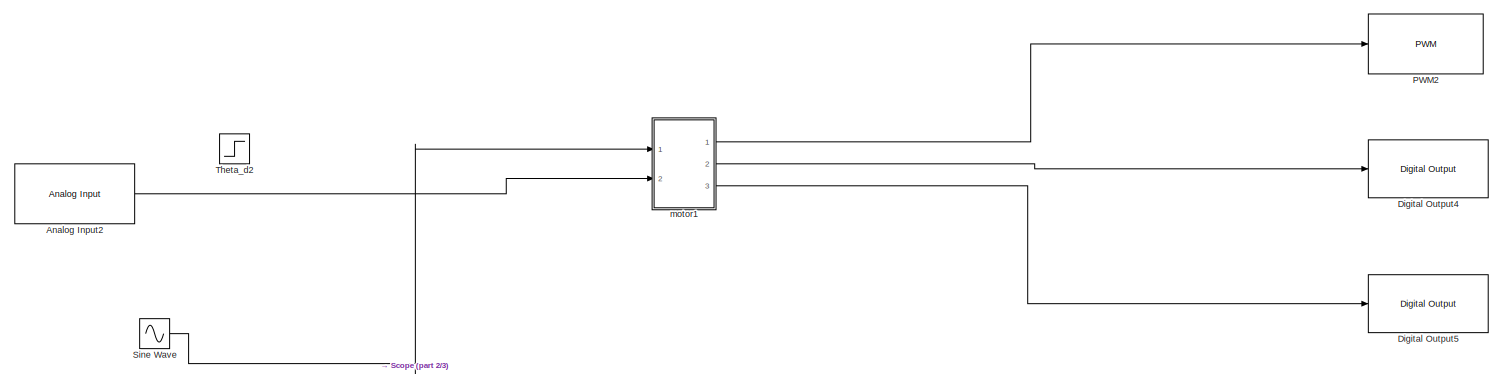
[diagram: root canvas - part 1/3, full width, top band]
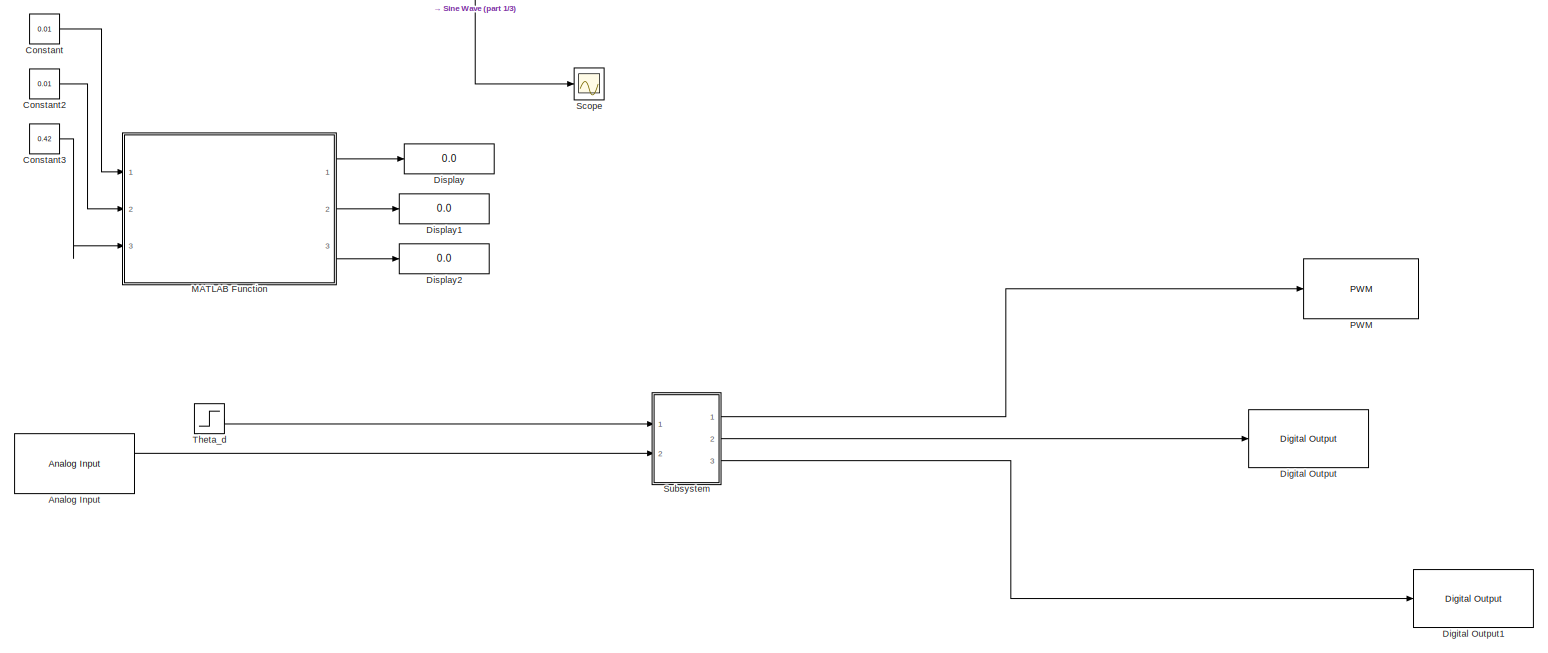
[diagram: root canvas - part 2/3, full width, middle band]
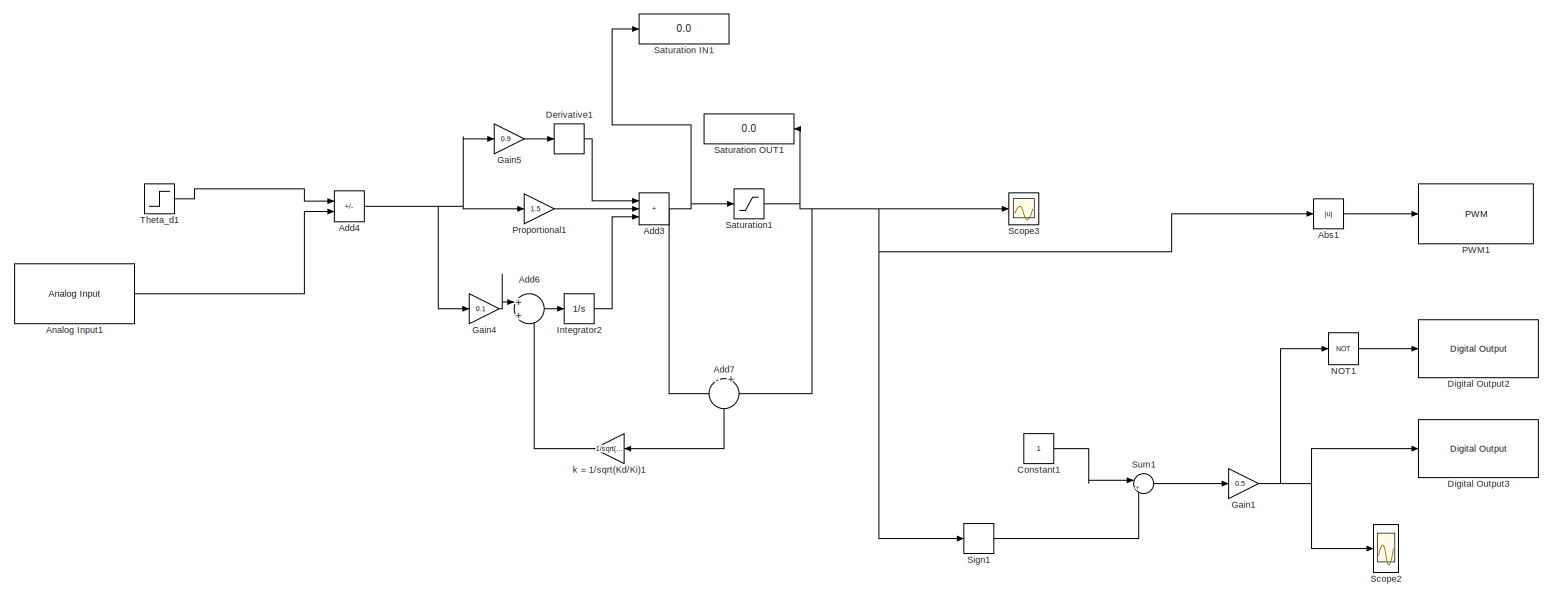
[diagram: root canvas - part 3/3, full width, bottom band]
MODEL slx_c4cece5c2bb6
KIND model
CONFIG AbsTol = auto
CONFIG EnableMultiTasking = on
CONFIG FixedStep = 0.01
CONFIG MaxStep = auto
CONFIG MinStep = auto
CONFIG RelTol = 1e-3
CONFIG SampleTimeConstraint = Unconstrained
CONFIG SolverName = FixedStepAuto
CONFIG StartTime = 0.0
CONFIG StopTime = inf
BLOCK [Abs] Abs1
  Commented = on
  SaturateOnIntegerOverflow = off
BLOCK [Sum] Add3
  Commented = on
  IconShape = rectangular
  Inputs = +++
  Ports = [3, 1]
BLOCK [Sum] Add4
  Commented = on
  IconShape = rectangular
  Inputs = +-
  Ports = [2, 1]
BLOCK [Sum] Add6
  Commented = on
  Ports = [2, 1]
BLOCK [Sum] Add7
  Commented = on
  Inputs = -+
  NameLocation = left
  Ports = [2, 1]
BLOCK [Reference] Analog Input  REF=arduinolib/Analog Input
  Commented = on
  Ports = [0, 1]
  SourceBlock = arduinolib/Analog Input
  SourceProductBaseCode = ARDUINO
  SourceType = Arduino Analog Input
BLOCK [Reference] Analog Input1  REF=arduinolib/Analog Input
  Commented = on
  Ports = [0, 1]
  SourceBlock = arduinolib/Analog Input
  SourceProductBaseCode = ARDUINO
  SourceType = Arduino Analog Input
BLOCK [Reference] Analog Input2  REF=arduinolib/Analog Input
  Ports = [0, 1]
  SourceBlock = arduinolib/Analog Input
  SourceProductBaseCode = ARDUINO
  SourceType = Arduino Analog Input
BLOCK [Constant] Constant
  Commented = on
  Value = 0.01
BLOCK [Constant] Constant1
  Commented = on
BLOCK [Constant] Constant2
  Commented = on
  Value = 0.01
BLOCK [Constant] Constant3
  Commented = on
  Value = 0.42
BLOCK [Derivative] Derivative1
  Commented = on
BLOCK [Reference] Digital Output  REF=arduinolib/Digital Output
  Commented = on
  Ports = [1]
  SourceBlock = arduinolib/Digital Output
  SourceProductBaseCode = ARDUINO
  SourceType = Arduino Digital Output
BLOCK [Reference] Digital Output1  REF=arduinolib/Digital Output
  Commented = on
  Ports = [1]
  SourceBlock = arduinolib/Digital Output
  SourceProductBaseCode = ARDUINO
  SourceType = Arduino Digital Output
BLOCK [Reference] Digital Output2  REF=arduinolib/Digital Output
  Commented = on
  Ports = [1]
  SourceBlock = arduinolib/Digital Output
  SourceProductBaseCode = ARDUINO
  SourceType = Arduino Digital Output
BLOCK [Reference] Digital Output3  REF=arduinolib/Digital Output
  Commented = on
  Ports = [1]
  SourceBlock = arduinolib/Digital Output
  SourceProductBaseCode = ARDUINO
  SourceType = Arduino Digital Output
BLOCK [Reference] Digital Output4  REF=arduinolib/Digital Output
  Ports = [1]
  SourceBlock = arduinolib/Digital Output
  SourceProductBaseCode = ARDUINO
  SourceType = Arduino Digital Output
BLOCK [Reference] Digital Output5  REF=arduinolib/Digital Output
  Ports = [1]
  SourceBlock = arduinolib/Digital Output
  SourceProductBaseCode = ARDUINO
  SourceType = Arduino Digital Output
BLOCK [Display] Display
  Commented = on
  Decimation = 1
  Ports = [1]
BLOCK [Display] Display1
  Commented = on
  Decimation = 1
  Ports = [1]
BLOCK [Display] Display2
  Commented = on
  Decimation = 1
  Ports = [1]
BLOCK [Gain] Gain1
  Commented = on
  Gain = 0.5
BLOCK [Gain] Gain4
  Commented = on
  Gain = 0.1
BLOCK [Gain] Gain5
  Commented = on
  Gain = 0.9
BLOCK [Integrator] Integrator2
  Commented = on
  Ports = [1, 1]
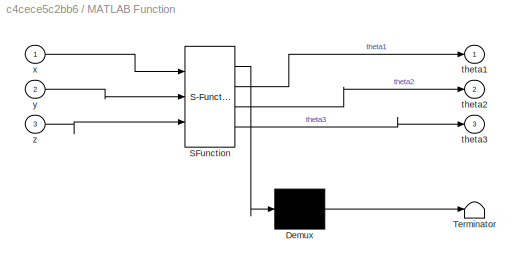
BLOCK [SubSystem] MATLAB Function
  Commented = on
  ErrorFcn = Stateflow.Translate.translate
  PermitHierarchicalResolution = ExplicitOnly
  Ports = [3, 3]
  RequestExecContextInheritance = off
  SFBlockType = MATLAB Function
  TreatAsAtomicUnit = on
BLOCK [Demux] MATLAB Function/ Demux 
  Outputs = 1
  Ports = [1, 1]
BLOCK [S-Function] MATLAB Function/ SFunction 
  EnableBusSupport = on
  FunctionName = sf_sfun
  PortCounts = [3 4]
  Ports = [3, 4]
  SFcnIsStateOwnerBlock = off
  SFunctionDeploymentMode = off
  Tag = Stateflow S-Function 2
BLOCK [Terminator] MATLAB Function/ Terminator 
BLOCK [Outport] MATLAB Function/theta1
BLOCK [Outport] MATLAB Function/theta2
  Port = 2
BLOCK [Outport] MATLAB Function/theta3
  Port = 3
BLOCK [Inport] MATLAB Function/x
BLOCK [Inport] MATLAB Function/y
  Port = 2
BLOCK [Inport] MATLAB Function/z
  Port = 3
BLOCK [Logic] NOT1
  AllPortsSameDT = off
  Commented = on
  IconShape = distinctive
  Operator = NOT
  OutDataTypeStr = boolean
  Ports = [1, 1]
BLOCK [Reference] PWM  REF=arduinolib/PWM
  Commented = on
  Ports = [1]
  SourceBlock = arduinolib/PWM
  SourceProductBaseCode = ARDUINO
  SourceType = Arduino PWM
BLOCK [Reference] PWM1  REF=arduinolib/PWM
  Commented = on
  Ports = [1]
  SourceBlock = arduinolib/PWM
  SourceProductBaseCode = ARDUINO
  SourceType = Arduino PWM
BLOCK [Reference] PWM2  REF=arduinolib/PWM
  Ports = [1]
  SourceBlock = arduinolib/PWM
  SourceProductBaseCode = ARDUINO
  SourceType = Arduino PWM
BLOCK [Gain] Proportional1
  Commented = on
  Gain = 1.5
BLOCK [Display] Saturation IN1
  Commented = on
  Decimation = 1
  Ports = [1]
BLOCK [Display] Saturation OUT1
  Commented = on
  Decimation = 1
  NameLocation = top
  Ports = [1]
BLOCK [Saturate] Saturation1
  Commented = on
  LowerLimit = -130
  UpperLimit = 130
BLOCK [Scope] Scope
  Floating = off
  NumInputPorts = 1
  Ports = [1]
  ScopeSpecificationString = Simulink.scopes.TimeScopeBlockCfg('CurrentConfiguration', extmgr.ConfigurationSet(extmgr.Configuration('Core','General UI',true),extmgr.Configuration('Core','Source UI',true),extmgr.Configuration('Sources','WiredSimulink',true,'DataLoggingVariableName','ScopeData1'),extmgr.Configuration('Visuals','Time Domain',true,'SerializedDisplays',{struct('MinYLimReal','237.50008','MaxYLimReal','362.49964','Y...<+1471ch>
BLOCK [Scope] Scope2
  Commented = on
  Floating = off
  NumInputPorts = 1
  Ports = [1]
  ScopeSpecificationString = Simulink.scopes.TimeScopeBlockCfg('CurrentConfiguration', extmgr.ConfigurationSet(extmgr.Configuration('Core','General UI',true),extmgr.Configuration('Core','Source UI',true),extmgr.Configuration('Sources','WiredSimulink',true,'DataLoggingVariableName','ScopeData2'),extmgr.Configuration('Visuals','Time Domain',true,'SerializedDisplays',{struct('MinYLimReal','-1.25','MaxYLimReal','1.25','YLabelReal...<+1457ch>
BLOCK [Scope] Scope3
  Commented = on
  Floating = off
  NumInputPorts = 1
  Ports = [1]
  ScopeSpecificationString = Simulink.scopes.TimeScopeBlockCfg('CurrentConfiguration', extmgr.ConfigurationSet(extmgr.Configuration('Core','General UI',true),extmgr.Configuration('Core','Source UI',true),extmgr.Configuration('Sources','WiredSimulink',true,'DataLoggingVariableName','ScopeData3'),extmgr.Configuration('Visuals','Time Domain',true,'SerializedDisplays',{struct('MinYLimReal','-24.71098','MaxYLimReal','222.39884','Y...<+1381ch>
BLOCK [Signum] Sign1
  Commented = on
BLOCK [Sin] Sine Wave
  Amplitude = 50
  Bias = 300
  Frequency = 3
  Ports = [0, 1]
  SampleTime = 0
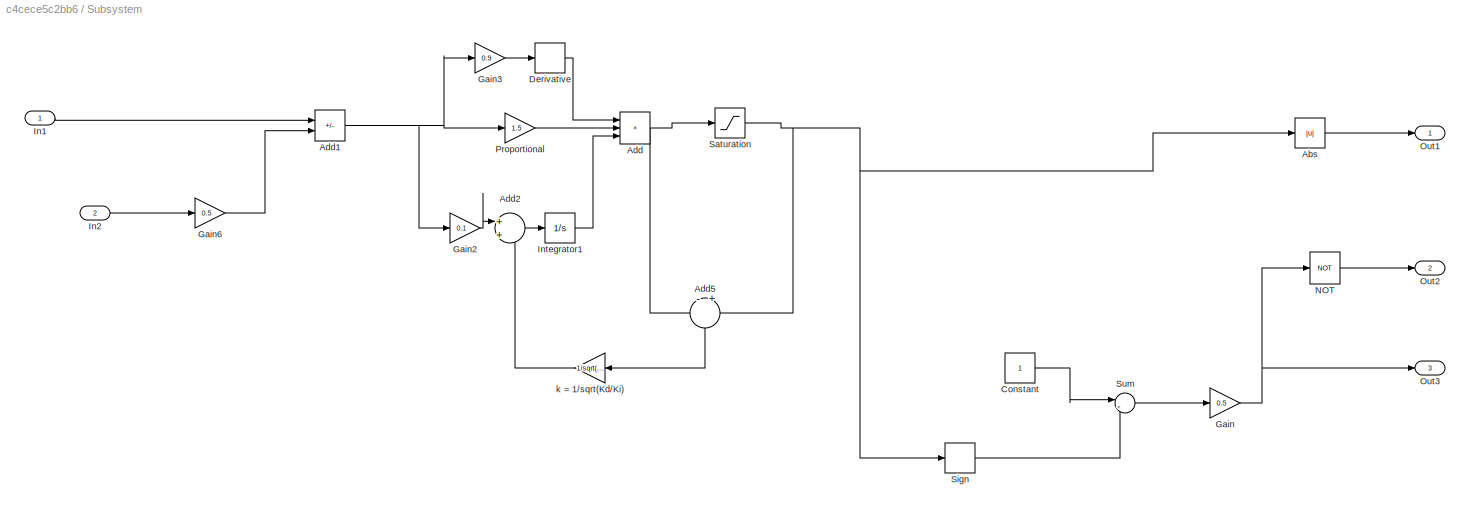
BLOCK [SubSystem] Subsystem
  Commented = on
  Ports = [2, 3]
  RequestExecContextInheritance = off
BLOCK [Abs] Subsystem/Abs
  SaturateOnIntegerOverflow = off
BLOCK [Sum] Subsystem/Add
  IconShape = rectangular
  Inputs = +++
  Ports = [3, 1]
BLOCK [Sum] Subsystem/Add1
  IconShape = rectangular
  Inputs = +-
  Ports = [2, 1]
BLOCK [Sum] Subsystem/Add2
  Ports = [2, 1]
BLOCK [Sum] Subsystem/Add5
  Inputs = -+
  NameLocation = left
  Ports = [2, 1]
BLOCK [Constant] Subsystem/Constant
BLOCK [Derivative] Subsystem/Derivative
BLOCK [Gain] Subsystem/Gain
  Gain = 0.5
BLOCK [Gain] Subsystem/Gain2
  Gain = 0.1
BLOCK [Gain] Subsystem/Gain3
  Gain = 0.9
BLOCK [Gain] Subsystem/Gain6
  Gain = 0.5
BLOCK [Inport] Subsystem/In1
BLOCK [Inport] Subsystem/In2
  Port = 2
BLOCK [Integrator] Subsystem/Integrator1
  Ports = [1, 1]
BLOCK [Logic] Subsystem/NOT
  AllPortsSameDT = off
  IconShape = distinctive
  Operator = NOT
  OutDataTypeStr = boolean
  Ports = [1, 1]
BLOCK [Outport] Subsystem/Out1
BLOCK [Outport] Subsystem/Out2
  Port = 2
BLOCK [Outport] Subsystem/Out3
  Port = 3
BLOCK [Gain] Subsystem/Proportional
  Gain = 1.5
BLOCK [Saturate] Subsystem/Saturation
  LowerLimit = -130
  UpperLimit = 130
BLOCK [Signum] Subsystem/Sign
BLOCK [Sum] Subsystem/Sum
  Inputs = |++
  Ports = [2, 1]
BLOCK [Gain] Subsystem/k = 1//sqrt(Kd//Ki)
  Gain = 1/sqrt(0.8/0.1)
  NameLocation = top
BLOCK [Sum] Sum1
  Commented = on
  Inputs = |++
  Ports = [2, 1]
BLOCK [Step] Theta_d
  After = 180
  Commented = on
  SampleTime = 0
BLOCK [Step] Theta_d1
  After = 95
  Commented = on
  SampleTime = 0
BLOCK [Step] Theta_d2
  SampleTime = 0
BLOCK [Gain] k = 1//sqrt(Kd//Ki)1
  Commented = on
  Gain = 1/sqrt(0.8/0.1)
  NameLocation = top
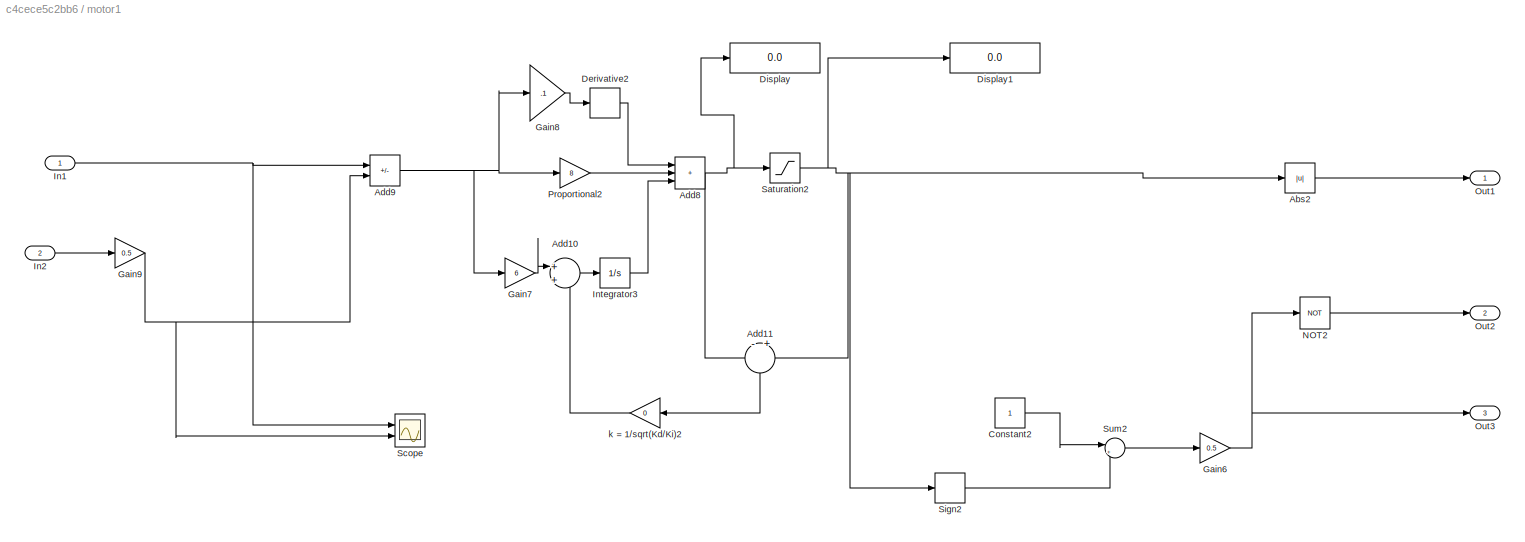
BLOCK [SubSystem] motor1 
  Ports = [2, 3]
  RequestExecContextInheritance = off
BLOCK [Abs] motor1 /Abs2
  SaturateOnIntegerOverflow = off
BLOCK [Sum] motor1 /Add10
  Ports = [2, 1]
BLOCK [Sum] motor1 /Add11
  Inputs = -+
  NameLocation = left
  Ports = [2, 1]
BLOCK [Sum] motor1 /Add8
  IconShape = rectangular
  Inputs = +++
  Ports = [3, 1]
BLOCK [Sum] motor1 /Add9
  IconShape = rectangular
  Inputs = +-
  Ports = [2, 1]
BLOCK [Constant] motor1 /Constant2
BLOCK [Derivative] motor1 /Derivative2
BLOCK [Display] motor1 /Display
  Decimation = 1
  Ports = [1]
BLOCK [Display] motor1 /Display1
  Decimation = 1
  Ports = [1]
BLOCK [Gain] motor1 /Gain6
  Gain = 0.5
BLOCK [Gain] motor1 /Gain7
  Gain = 6
BLOCK [Gain] motor1 /Gain8
  Gain = .1
BLOCK [Gain] motor1 /Gain9
  Gain = 0.5
BLOCK [Inport] motor1 /In1
BLOCK [Inport] motor1 /In2
  Port = 2
BLOCK [Integrator] motor1 /Integrator3
  Ports = [1, 1]
BLOCK [Logic] motor1 /NOT2
  AllPortsSameDT = off
  IconShape = distinctive
  Operator = NOT
  OutDataTypeStr = boolean
  Ports = [1, 1]
BLOCK [Outport] motor1 /Out1
BLOCK [Outport] motor1 /Out2
  Port = 2
BLOCK [Outport] motor1 /Out3
  Port = 3
BLOCK [Gain] motor1 /Proportional2
  Gain = 8
BLOCK [Saturate] motor1 /Saturation2
  LowerLimit = -130
  UpperLimit = 130
BLOCK [Scope] motor1 /Scope
  Floating = off
  NumInputPorts = 2
  Ports = [2]
  ScopeSpecificationString = Simulink.scopes.TimeScopeBlockCfg('CurrentConfiguration', extmgr.ConfigurationSet(extmgr.Configuration('Core','General UI',true),extmgr.Configuration('Core','Source UI',true),extmgr.Configuration('Sources','WiredSimulink',true,'DataLoggingVariableName','ScopeData2'),extmgr.Configuration('Visuals','Time Domain',true,'SerializedDisplays',{struct('MinYLimReal','272.17383','MaxYLimReal','289.20291','Y...<+1438ch>
BLOCK [Signum] motor1 /Sign2
BLOCK [Sum] motor1 /Sum2
  Inputs = |++
  Ports = [2, 1]
BLOCK [Gain] motor1 /k = 1//sqrt(Kd//Ki)2
  Gain = 0
  NameLocation = top
LINE Abs1:1 -> PWM1:1
NET Add3:1 -> Add7:1, Saturation IN1:1, Saturation1:1
NET Add4:1 -> Gain4:1, Gain5:1, Proportional1:1
LINE Add6:1 -> Integrator2:1
LINE Add7:1 -> k = 1//sqrt(Kd//Ki)1:1
LINE Analog Input1:1 -> Add4:2
LINE Analog Input2:1 -> motor1 :2
LINE Analog Input:1 -> Subsystem:2
LINE Constant1:1 -> Sum1:1
LINE Constant2:1 -> MATLAB Function:2
LINE Constant3:1 -> MATLAB Function:3
LINE Constant:1 -> MATLAB Function:1
LINE Derivative1:1 -> Add3:1
NET Gain1:1 -> Digital Output3:1, NOT1:1, Scope2:1
LINE Gain4:1 -> Add6:1
LINE Gain5:1 -> Derivative1:1
LINE Integrator2:1 -> Add3:3
LINE MATLAB Function:1 -> Display:1
LINE MATLAB Function:2 -> Display1:1
LINE MATLAB Function:3 -> Display2:1
LINE NOT1:1 -> Digital Output2:1
LINE Proportional1:1 -> Add3:2
NET Saturation1:1 -> Abs1:1, Add7:2, Saturation OUT1:1, Scope3:1, Sign1:1
LINE Sign1:1 -> Sum1:2
NET Sine Wave:1 -> Scope:1, motor1 :1
LINE Subsystem/Abs:1 -> Subsystem/Out1:1
NET Subsystem/Add1:1 -> Subsystem/Gain2:1, Subsystem/Gain3:1, Subsystem/Proportional:1
LINE Subsystem/Add2:1 -> Subsystem/Integrator1:1
LINE Subsystem/Add5:1 -> Subsystem/k = 1//sqrt(Kd//Ki):1
NET Subsystem/Add:1 -> Subsystem/Add5:1, Subsystem/Saturation:1
LINE Subsystem/Constant:1 -> Subsystem/Sum:1
LINE Subsystem/Derivative:1 -> Subsystem/Add:1
LINE Subsystem/Gain2:1 -> Subsystem/Add2:1
LINE Subsystem/Gain3:1 -> Subsystem/Derivative:1
LINE Subsystem/Gain6:1 -> Subsystem/Add1:2
NET Subsystem/Gain:1 -> Subsystem/NOT:1, Subsystem/Out3:1
LINE Subsystem/In1:1 -> Subsystem/Add1:1
LINE Subsystem/In2:1 -> Subsystem/Gain6:1
LINE Subsystem/Integrator1:1 -> Subsystem/Add:3
LINE Subsystem/NOT:1 -> Subsystem/Out2:1
LINE Subsystem/Proportional:1 -> Subsystem/Add:2
NET Subsystem/Saturation:1 -> Subsystem/Abs:1, Subsystem/Add5:2, Subsystem/Sign:1
LINE Subsystem/Sign:1 -> Subsystem/Sum:2
LINE Subsystem/Sum:1 -> Subsystem/Gain:1
LINE Subsystem/k = 1//sqrt(Kd//Ki):1 -> Subsystem/Add2:2
LINE Subsystem:1 -> PWM:1
LINE Subsystem:2 -> Digital Output:1
LINE Subsystem:3 -> Digital Output1:1
LINE Sum1:1 -> Gain1:1
LINE Theta_d1:1 -> Add4:1
LINE Theta_d:1 -> Subsystem:1
LINE k = 1//sqrt(Kd//Ki)1:1 -> Add6:2
LINE motor1 /Abs2:1 -> motor1 /Out1:1
LINE motor1 /Add10:1 -> motor1 /Integrator3:1
LINE motor1 /Add11:1 -> motor1 /k = 1//sqrt(Kd//Ki)2:1
NET motor1 /Add8:1 -> motor1 /Add11:1, motor1 /Display:1, motor1 /Saturation2:1
NET motor1 /Add9:1 -> motor1 /Gain7:1, motor1 /Gain8:1, motor1 /Proportional2:1
LINE motor1 /Constant2:1 -> motor1 /Sum2:1
LINE motor1 /Derivative2:1 -> motor1 /Add8:1
NET motor1 /Gain6:1 -> motor1 /NOT2:1, motor1 /Out3:1
LINE motor1 /Gain7:1 -> motor1 /Add10:1
LINE motor1 /Gain8:1 -> motor1 /Derivative2:1
NET motor1 /Gain9:1 -> motor1 /Add9:2, motor1 /Scope:2
NET motor1 /In1:1 -> motor1 /Add9:1, motor1 /Scope:1
LINE motor1 /In2:1 -> motor1 /Gain9:1
LINE motor1 /Integrator3:1 -> motor1 /Add8:3
LINE motor1 /NOT2:1 -> motor1 /Out2:1
LINE motor1 /Proportional2:1 -> motor1 /Add8:2
NET motor1 /Saturation2:1 -> motor1 /Abs2:1, motor1 /Add11:2, motor1 /Display1:1, motor1 /Sign2:1
LINE motor1 /Sign2:1 -> motor1 /Sum2:2
LINE motor1 /Sum2:1 -> motor1 /Gain6:1
LINE motor1 /k = 1//sqrt(Kd//Ki)2:1 -> motor1 /Add10:2
LINE motor1 :1 -> PWM2:1
LINE motor1 :2 -> Digital Output4:1
LINE motor1 :3 -> Digital Output5:1
note: NET lines group one-source signal fan-out (src -> all destinations, sorted); 1:1 wires keep LINE
CHART MATLAB Function states=1 transitions=1
  STATE_LABEL 'eML_blk_kernel()'
  STATE_LABEL 'SCRIPT:\nfunction [theta1, theta2, theta3] = inverse(x,y,z)\n    d1 = 0.235;\n    a2 = 0.13;\n    a3 = 0.075;\n    q1 = zeros(2,1);\n    q3 = zeros(2,1);\n    %theta1\n    q1(1) = atan2(y,x);\n    q1(2) = atan2(y,x) + pi;\n\n    %theta3\n    D = (x^2 + y^2 + (z - d1)^2 - (a2)^2 - (a3)^2)/(2 * a2 *a3);\n    q3(1) = atan2(sqrt(1-D^2) , D);\n    q3(2) = atan2(-sqrt(1-D^2) , D);\n\n    %theta2\n    q2 = atan2(z-d1, sq...<+130ch>'
CHART  states=0 transitions=0
